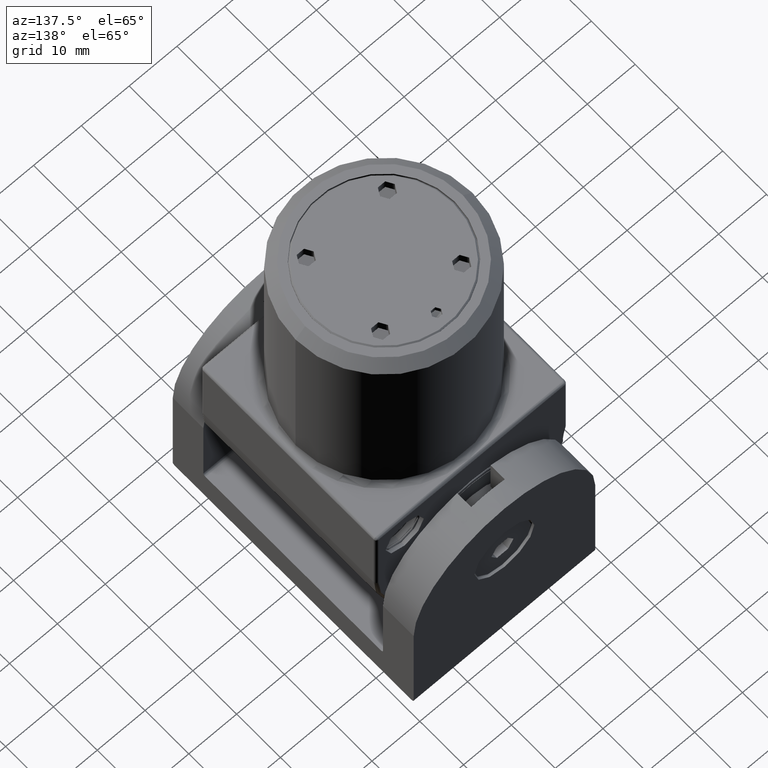
[diagram: clean part render]
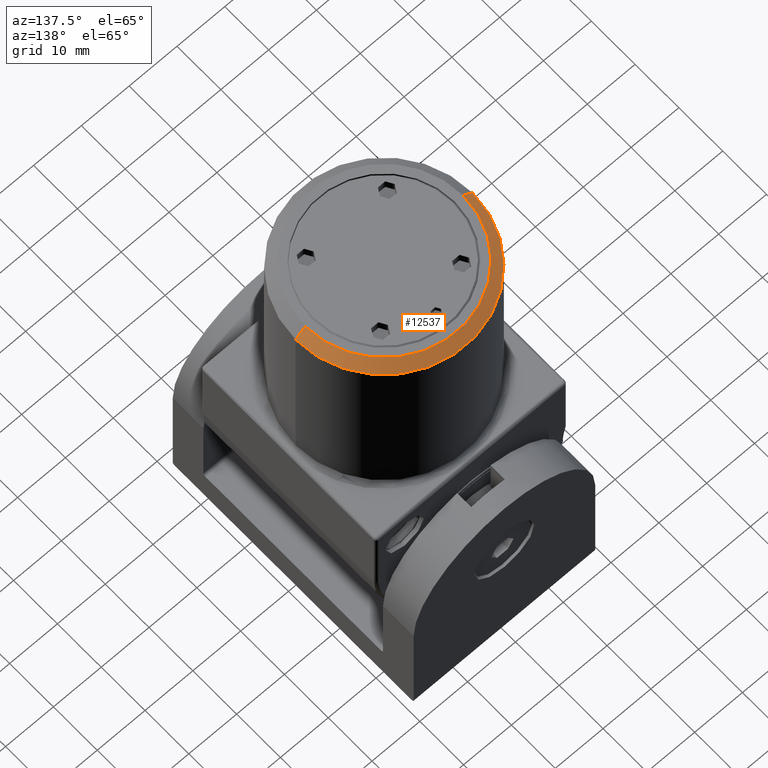
[diagram: same view with one face highlighted and labeled with its STEP entity id]
A machine part, auxiliary view. The second image highlights one B-rep face of the part: STEP entity #12537.
In plain terms, the highlighted conical surface has half-angle 45 deg.
Its self-contained STEP definition (entity closure, byte-faithful):
#734 = ORIENTED_EDGE ( 'NONE', *, *, #17404, .F. ) ;
#885 = LINE ( 'NONE', #15734, #16847 ) ;
#1212 = CONICAL_SURFACE ( 'NONE', #11075, 16.49999999999997158, 0.7853981633974457255 ) ;
#4916 = CARTESIAN_POINT ( 'NONE',  ( 16.49999999999997158, 2.020667218593129550E-15, 41.50000000000000711 ) ) ;
#5302 = EDGE_LOOP ( 'NONE', ( #8566, #12338, #734, #6087 ) ) ;
#5599 = CARTESIAN_POINT ( 'NONE',  ( -18.50000000000000000, 0.000000000000000000, 39.49999999999995026 ) ) ;
#5647 = DIRECTION ( 'NONE',  ( -1.000000000000000000, 0.000000000000000000, 0.000000000000000000 ) ) ;
#5712 = DIRECTION ( 'NONE',  ( 0.000000000000000000, 0.000000000000000000, -1.000000000000000000 ) ) ;
#6087 = ORIENTED_EDGE ( 'NONE', *, *, #16359, .F. ) ;
#7115 = CARTESIAN_POINT ( 'NONE',  ( 0.000000000000000000, 0.000000000000000000, 41.50000000000000711 ) ) ;
#7538 = EDGE_CURVE ( 'NONE', #18088, #10656, #13298, .T. ) ;
#8017 = VERTEX_POINT ( 'NONE', #5599 ) ;
#8566 = ORIENTED_EDGE ( 'NONE', *, *, #7538, .F. ) ;
#8668 = AXIS2_PLACEMENT_3D ( 'NONE', #10976, #9566, #10908 ) ;
#9566 = DIRECTION ( 'NONE',  ( 0.000000000000000000, 0.000000000000000000, 1.000000000000000000 ) ) ;
#10537 = DIRECTION ( 'NONE',  ( 0.7071067811865456854, 8.659560562354909439E-17, -0.7071067811865493491 ) ) ;
#10656 = VERTEX_POINT ( 'NONE', #15221 ) ;
#10908 = DIRECTION ( 'NONE',  ( 1.000000000000000000, 0.000000000000000000, 0.000000000000000000 ) ) ;
#10976 = CARTESIAN_POINT ( 'NONE',  ( 0.000000000000000000, 0.000000000000000000, 41.50000000000000711 ) ) ;
#11075 = AXIS2_PLACEMENT_3D ( 'NONE', #7115, #5712, #5647 ) ;
#12338 = ORIENTED_EDGE ( 'NONE', *, *, #17133, .T. ) ;
#12537 = ADVANCED_FACE ( 'NONE', ( #14455 ), #1212, .T. ) ;
#12991 = DIRECTION ( 'NONE',  ( -0.7071067811865456854, 0.000000000000000000, -0.7071067811865493491 ) ) ;
#13061 = DIRECTION ( 'NONE',  ( 0.000000000000000000, 0.000000000000000000, -1.000000000000000000 ) ) ;
#13298 = CIRCLE ( 'NONE', #8668, 16.49999999999997158 ) ;
#13816 = VERTEX_POINT ( 'NONE', #18143 ) ;
#14250 = CARTESIAN_POINT ( 'NONE',  ( 16.49999999999997158, 2.143131898507867459E-15, 41.50000000000000711 ) ) ;
#14276 = DIRECTION ( 'NONE',  ( 1.000000000000000000, 0.000000000000000000, 0.000000000000000000 ) ) ;
#14455 = FACE_OUTER_BOUND ( 'NONE', #5302, .T. ) ;
#15221 = CARTESIAN_POINT ( 'NONE',  ( -16.49999999999997158, 0.000000000000000000, 41.50000000000000711 ) ) ;
#15447 = CIRCLE ( 'NONE', #16629, 18.50000000000000000 ) ;
#15734 = CARTESIAN_POINT ( 'NONE',  ( -16.49999999999997158, 0.000000000000000000, 41.50000000000000711 ) ) ;
#15867 = CARTESIAN_POINT ( 'NONE',  ( 0.000000000000000000, 0.000000000000000000, 39.49999999999995026 ) ) ;
#16359 = EDGE_CURVE ( 'NONE', #10656, #8017, #885, .T. ) ;
#16629 = AXIS2_PLACEMENT_3D ( 'NONE', #15867, #13061, #14276 ) ;
#16830 = VECTOR ( 'NONE', #10537, 1000.000000000000000 ) ;
#16847 = VECTOR ( 'NONE', #12991, 1000.000000000000000 ) ;
#17133 = EDGE_CURVE ( 'NONE', #18088, #13816, #17556, .T. ) ;
#17404 = EDGE_CURVE ( 'NONE', #8017, #13816, #15447, .T. ) ;
#17556 = LINE ( 'NONE', #4916, #16830 ) ;
#18088 = VERTEX_POINT ( 'NONE', #14250 ) ;
#18143 = CARTESIAN_POINT ( 'NONE',  ( 18.50000000000000000, 2.265596578422603396E-15, 39.49999999999995026 ) ) ;